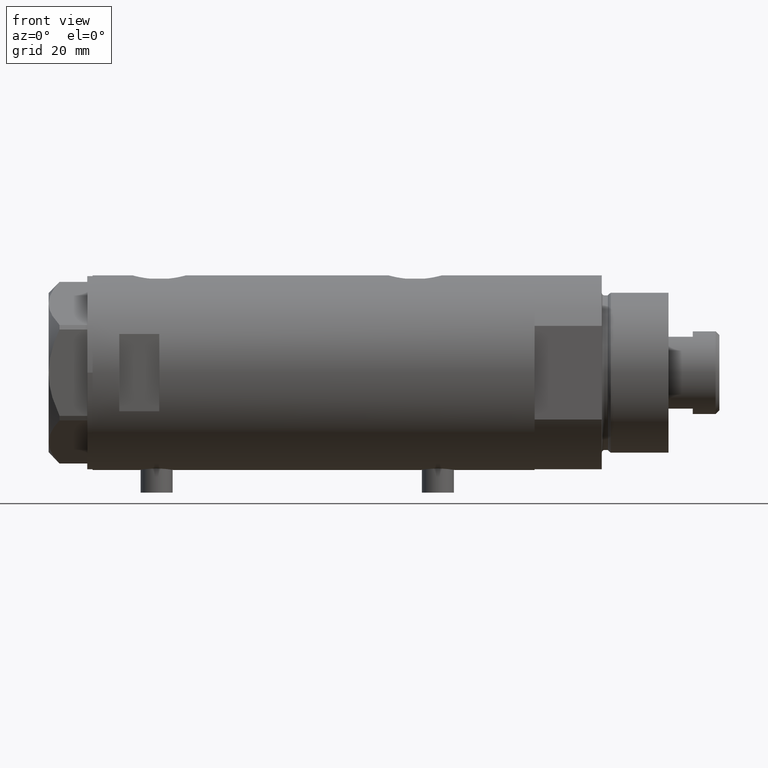
[diagram: clean part render]
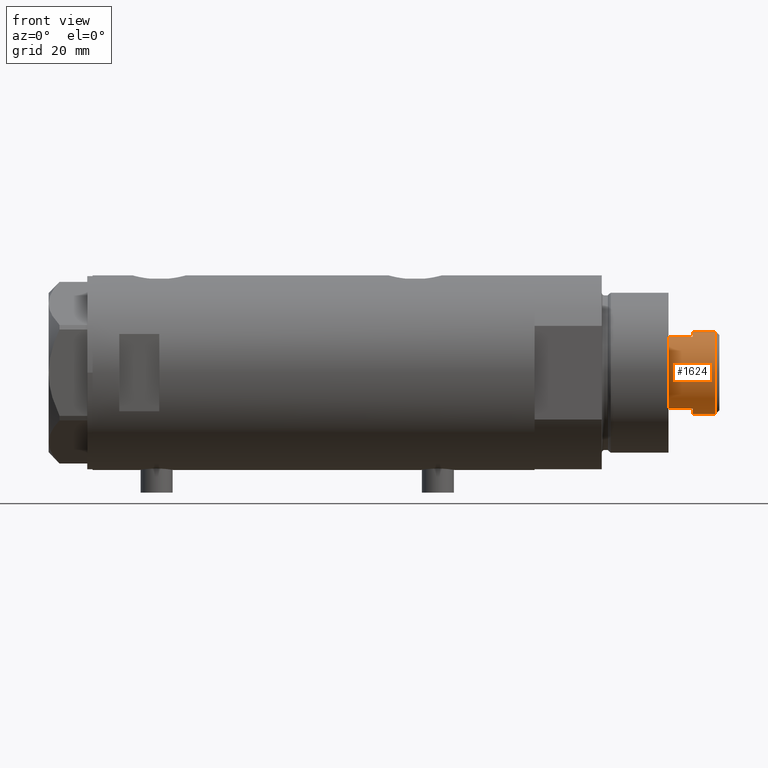
[diagram: same view with one face highlighted and labeled with its STEP entity id]
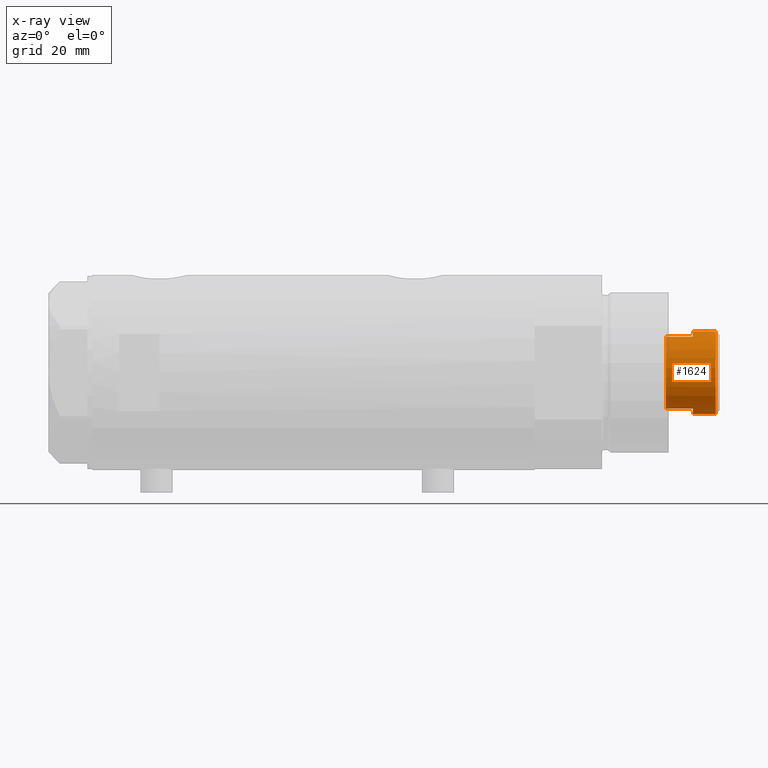
[diagram: x-ray of the same camera — body ghosted, the highlighted face saturated]
A machine part, front view. The second image highlights one B-rep face of the part: STEP entity #1624.
The next image is the same camera in x-ray: the body ghosted, the highlighted face saturated — about 0% of this face is hidden behind the body in this view.
In plain terms, the highlighted cylindrical surface (partial cylindrical patch) has radius 15.5 mm, axis along (-1, -0, 0).
Its self-contained STEP definition (entity closure, byte-faithful):
#114 = DIRECTION ( 'NONE',  ( 0.000000000000000000, 0.000000000000000000, 1.000000000000000000 ) ) ;
#123 = ORIENTED_EDGE ( 'NONE', *, *, #2325, .T. ) ;
#130 = VERTEX_POINT ( 'NONE', #250 ) ;
#150 = VECTOR ( 'NONE', #3509, 1000.000000000000000 ) ;
#154 = VERTEX_POINT ( 'NONE', #3895 ) ;
#163 = VERTEX_POINT ( 'NONE', #2016 ) ;
#181 = EDGE_CURVE ( 'NONE', #130, #3976, #4215, .T. ) ;
#242 = ORIENTED_EDGE ( 'NONE', *, *, #888, .F. ) ;
#250 = CARTESIAN_POINT ( 'NONE',  ( 15.49999999999999822, 1.898202538678397163E-15, 207.6999999999999602 ) ) ;
#349 = ORIENTED_EDGE ( 'NONE', *, *, #776, .T. ) ;
#493 = AXIS2_PLACEMENT_3D ( 'NONE', #2545, #967, #3182 ) ;
#561 = CIRCLE ( 'NONE', #1484, 15.50000000000000000 ) ;
#724 = LINE ( 'NONE', #2235, #4487 ) ;
#776 = EDGE_CURVE ( 'NONE', #163, #3976, #561, .T. ) ;
#838 = CARTESIAN_POINT ( 'NONE',  ( 0.000000000000000000, 0.000000000000000000, 199.0999999999999943 ) ) ;
#881 = EDGE_CURVE ( 'NONE', #1828, #154, #724, .T. ) ;
#888 = EDGE_CURVE ( 'NONE', #163, #1762, #4357, .T. ) ;
#967 = DIRECTION ( 'NONE',  ( 0.000000000000000000, 0.000000000000000000, -1.000000000000000000 ) ) ;
#982 = CARTESIAN_POINT ( 'NONE',  ( 0.000000000000000000, 0.000000000000000000, 199.0999999999999943 ) ) ;
#1354 = DIRECTION ( 'NONE',  ( 1.000000000000000000, 0.000000000000000000, 0.000000000000000000 ) ) ;
#1442 = CARTESIAN_POINT ( 'NONE',  ( 0.000000000000000000, 0.000000000000000000, 199.0999999999999943 ) ) ;
#1484 = AXIS2_PLACEMENT_3D ( 'NONE', #982, #2166, #1354 ) ;
#1485 = DIRECTION ( 'NONE',  ( 0.000000000000000000, 0.000000000000000000, 1.000000000000000000 ) ) ;
#1519 = FACE_OUTER_BOUND ( 'NONE', #3694, .T. ) ;
#1624 = ADVANCED_FACE ( 'NONE', ( #1519 ), #1941, .T. ) ;
#1645 = AXIS2_PLACEMENT_3D ( 'NONE', #1442, #1485, #2988 ) ;
#1709 = CARTESIAN_POINT ( 'NONE',  ( -15.50000000000000178, 0.000000000000000000, 199.0999999999999943 ) ) ;
#1740 = VECTOR ( 'NONE', #3606, 1000.000000000000000 ) ;
#1762 = VERTEX_POINT ( 'NONE', #2334 ) ;
#1828 = VERTEX_POINT ( 'NONE', #2454 ) ;
#1941 = CYLINDRICAL_SURFACE ( 'NONE', #3736, 15.49999999999999822 ) ;
#2016 = CARTESIAN_POINT ( 'NONE',  ( 13.48630416385453046, -7.639999999999995239, 199.0999999999999943 ) ) ;
#2039 = CARTESIAN_POINT ( 'NONE',  ( 15.49999999999999822, 1.898202538678397163E-15, 199.0999999999999943 ) ) ;
#2166 = DIRECTION ( 'NONE',  ( 0.000000000000000000, 0.000000000000000000, 1.000000000000000000 ) ) ;
#2168 = VERTEX_POINT ( 'NONE', #2323 ) ;
#2235 = CARTESIAN_POINT ( 'NONE',  ( -13.48630416385452691, -7.640000000000001457, 199.0999999999999943 ) ) ;
#2264 = VERTEX_POINT ( 'NONE', #1709 ) ;
#2323 = CARTESIAN_POINT ( 'NONE',  ( -15.49999999999999822, 0.000000000000000000, 207.6999999999999602 ) ) ;
#2325 = EDGE_CURVE ( 'NONE', #2264, #1828, #4423, .T. ) ;
#2334 = CARTESIAN_POINT ( 'NONE',  ( 13.48630416385452868, -7.640000000000082281, 189.0999999999999943 ) ) ;
#2346 = VECTOR ( 'NONE', #4027, 1000.000000000000000 ) ;
#2445 = DIRECTION ( 'NONE',  ( 1.000000000000000000, 0.000000000000000000, 0.000000000000000000 ) ) ;
#2454 = CARTESIAN_POINT ( 'NONE',  ( -13.48630416385452335, -7.640000000000004121, 199.0999999999999943 ) ) ;
#2545 = CARTESIAN_POINT ( 'NONE',  ( 0.000000000000000000, 0.000000000000000000, 207.6999999999999602 ) ) ;
#2626 = ORIENTED_EDGE ( 'NONE', *, *, #4517, .T. ) ;
#2697 = ORIENTED_EDGE ( 'NONE', *, *, #3906, .T. ) ;
#2774 = CARTESIAN_POINT ( 'NONE',  ( 0.000000000000000000, 0.000000000000000000, 189.0999999999999943 ) ) ;
#2912 = CARTESIAN_POINT ( 'NONE',  ( -15.49999999999999822, 0.000000000000000000, 199.0999999999999943 ) ) ;
#2988 = DIRECTION ( 'NONE',  ( 1.000000000000000000, 0.000000000000000000, 0.000000000000000000 ) ) ;
#3019 = ORIENTED_EDGE ( 'NONE', *, *, #881, .T. ) ;
#3182 = DIRECTION ( 'NONE',  ( 1.000000000000000000, 0.000000000000000000, 0.000000000000000000 ) ) ;
#3289 = CIRCLE ( 'NONE', #3592, 15.49999999999999822 ) ;
#3509 = DIRECTION ( 'NONE',  ( -0.000000000000000000, -0.000000000000000000, -1.000000000000000000 ) ) ;
#3592 = AXIS2_PLACEMENT_3D ( 'NONE', #2774, #114, #2445 ) ;
#3606 = DIRECTION ( 'NONE',  ( -0.000000000000000000, -0.000000000000000000, -1.000000000000000000 ) ) ;
#3676 = LINE ( 'NONE', #2912, #1740 ) ;
#3694 = EDGE_LOOP ( 'NONE', ( #4425, #2626, #2697, #123, #3019, #3755, #242, #349 ) ) ;
#3699 = CARTESIAN_POINT ( 'NONE',  ( 13.48630416385453046, -7.639999999999995239, 199.0999999999999943 ) ) ;
#3718 = DIRECTION ( 'NONE',  ( -0.000000000000000000, -0.000000000000000000, -1.000000000000000000 ) ) ;
#3736 = AXIS2_PLACEMENT_3D ( 'NONE', #838, #3835, #3861 ) ;
#3755 = ORIENTED_EDGE ( 'NONE', *, *, #3770, .T. ) ;
#3770 = EDGE_CURVE ( 'NONE', #154, #1762, #3289, .T. ) ;
#3835 = DIRECTION ( 'NONE',  ( -0.000000000000000000, -0.000000000000000000, -1.000000000000000000 ) ) ;
#3861 = DIRECTION ( 'NONE',  ( -1.000000000000000000, 0.000000000000000000, 0.000000000000000000 ) ) ;
#3895 = CARTESIAN_POINT ( 'NONE',  ( -13.48630416385452335, -7.640000000000089386, 189.0999999999999943 ) ) ;
#3906 = EDGE_CURVE ( 'NONE', #2168, #2264, #3676, .T. ) ;
#3976 = VERTEX_POINT ( 'NONE', #4073 ) ;
#4027 = DIRECTION ( 'NONE',  ( -0.000000000000000000, -0.000000000000000000, -1.000000000000000000 ) ) ;
#4073 = CARTESIAN_POINT ( 'NONE',  ( 15.50000000000000178, 1.898202538678397557E-15, 199.0999999999999943 ) ) ;
#4215 = LINE ( 'NONE', #2039, #150 ) ;
#4357 = LINE ( 'NONE', #3699, #2346 ) ;
#4423 = CIRCLE ( 'NONE', #1645, 15.50000000000000000 ) ;
#4425 = ORIENTED_EDGE ( 'NONE', *, *, #181, .F. ) ;
#4487 = VECTOR ( 'NONE', #3718, 1000.000000000000000 ) ;
#4498 = CIRCLE ( 'NONE', #493, 15.49999999999999822 ) ;
#4517 = EDGE_CURVE ( 'NONE', #130, #2168, #4498, .T. ) ;